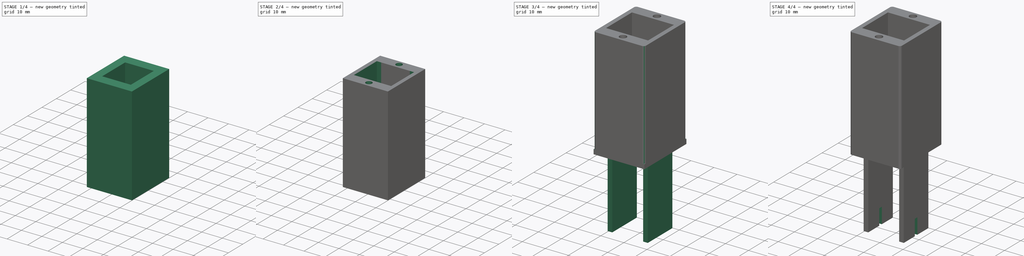
[diagram: build sequence overview — one tinted view per stage of 4, left to right]
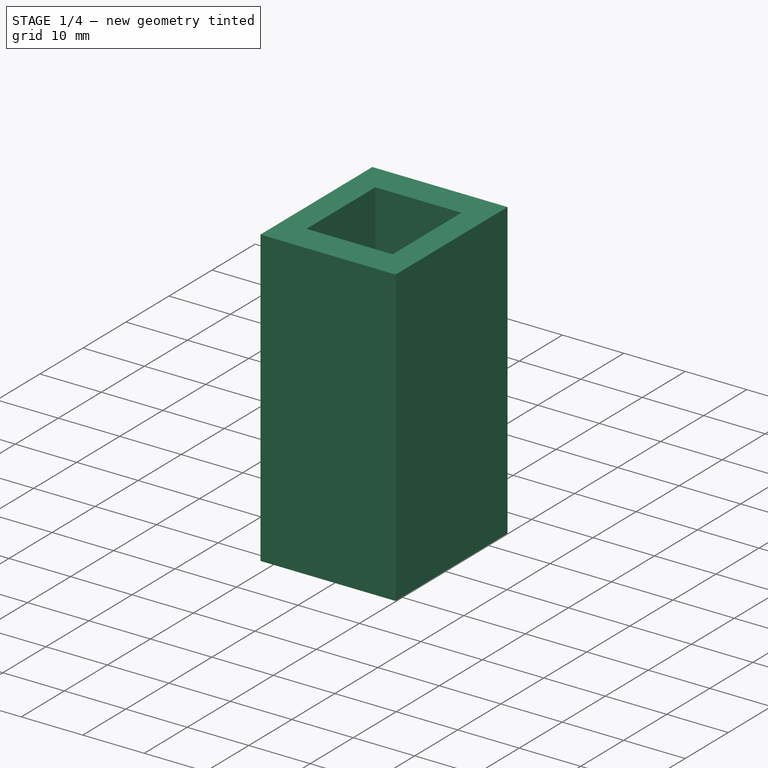
[diagram: stage 1 of 4 — iso view after this stage's code; geometry added in this stage tinted green]
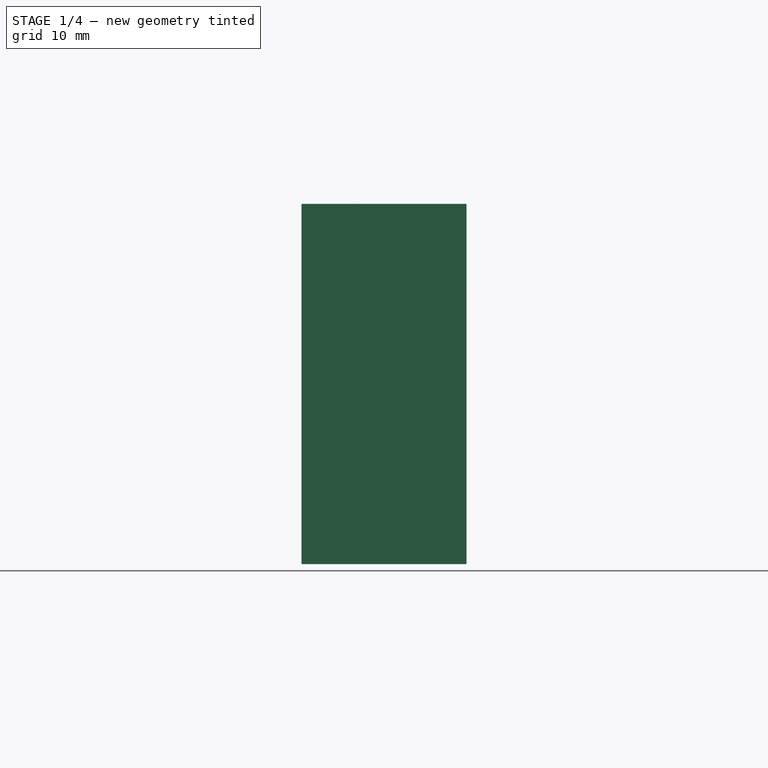
[diagram: stage 1 of 4 — front view after this stage's code; geometry added in this stage tinted green]
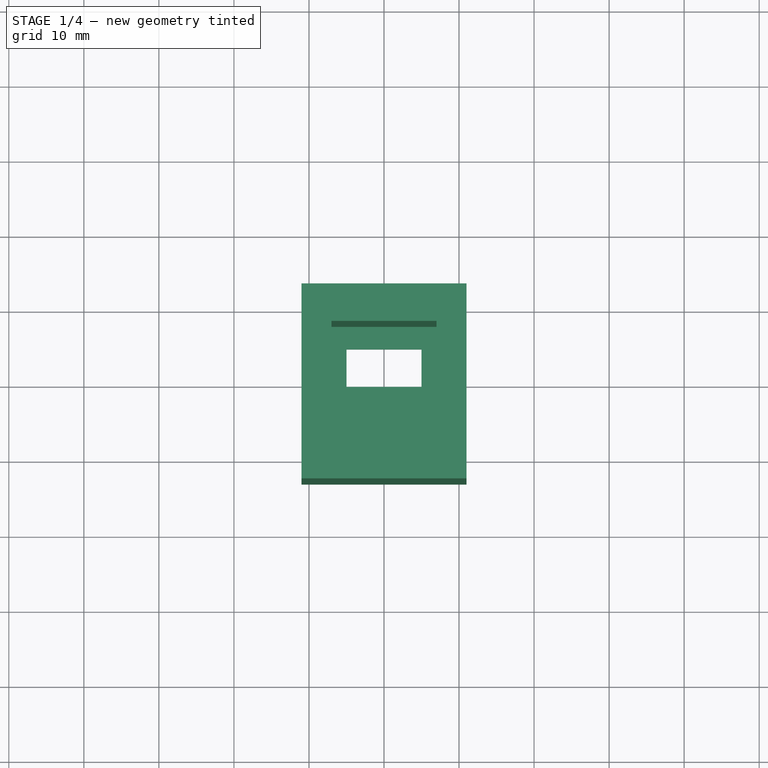
[diagram: stage 1 of 4 — top view after this stage's code; geometry added in this stage tinted green]
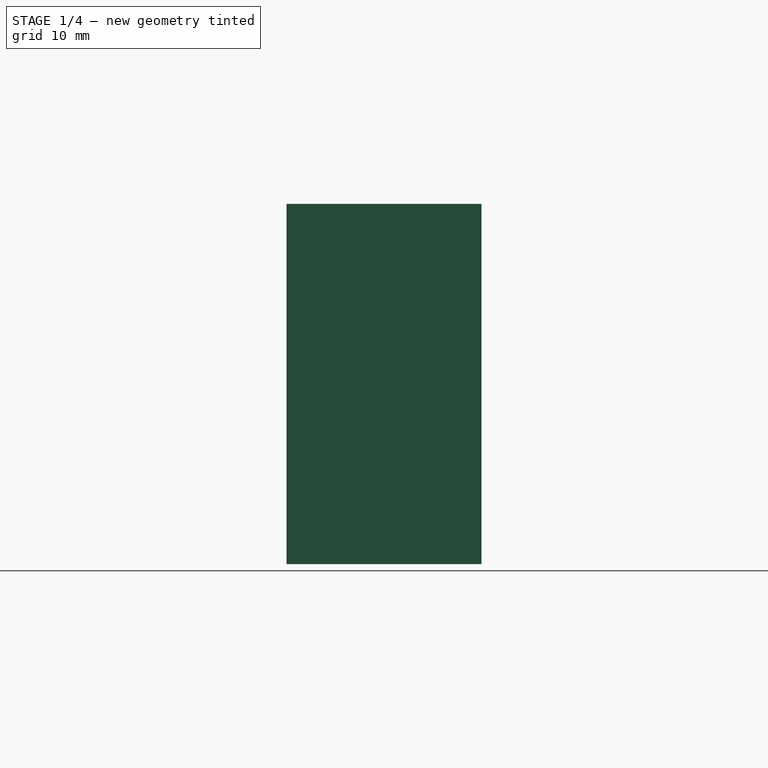
[diagram: stage 1 of 4 — right view after this stage's code; geometry added in this stage tinted green]
FCSTD DOCUMENT  (FreeCAD 0.21R33771 (Git))
Label: BNC-Xiao
License: All rights reserved
LicenseURL: http://en.wikipedia.org/wiki/All_rights_reserved
objects: Sketcher::SketchObject×11, PartDesign::Pocket×7, PartDesign::Pad×4, PartDesign::Fillet×2, PartDesign::Body×2, Part::Feature×1, App::Part×1
note: 40 computed .brp shape members not serialized (recipe doc carries the construction recipe); baked Part::Feature solids carry a one-line shape summary decoded from their .brp

FEATURE [Sketcher::SketchObject] Sketch
  FullyConstrained = true
  MapMode = 5
  Support = -> [XY_Plane]
  sketch-geometry (5):
    g0: LineSegment StartX=-11 StartY=13 StartZ=0 EndX=-11 EndY=-13 EndZ=0
    g1: LineSegment StartX=-11 StartY=-13 StartZ=0 EndX=11 EndY=-13 EndZ=0
    g2: LineSegment StartX=11 StartY=-13 StartZ=0 EndX=11 EndY=13 EndZ=0
    g3: LineSegment StartX=11 StartY=13 StartZ=0 EndX=-11 EndY=13 EndZ=0
    g4: GeomPoint X=0 Y=0 Z=0
  constraints (12):
    c: Coincident(g0,g1)
    c: Coincident(g1,g2)
    c: Coincident(g2,g3)
    c: Coincident(g3,g0)
    c: Horizontal(g1)
    c: Horizontal(g3)
    c: Vertical(g0)
    c: Vertical(g2)
    c: Symmetric(g1,g0,g4)
    c: Coincident(g4,g-1)
    c: DistanceY(g0,g0) = 26
    c: DistanceX(g3,g3) = 22
FEATURE [PartDesign::Pad] Pad
  Direction = (0,0,1)
  Length = 2
  Length2 = 10
  Profile = -> Sketch
  ReferenceAxis = -> Sketch [N_Axis]
  Type = 0
FEATURE [Sketcher::SketchObject] Sketch007
  FullyConstrained = true
  MapMode = 5
  Placement = pos=(0,0,2) rot=(0,0,1;0rad)
  Support = -> [Pad]
  sketch-geometry (4):
    g0: LineSegment StartX=-5 StartY=5 StartZ=0 EndX=-5 EndY=0 EndZ=0
    g1: LineSegment StartX=-5 StartY=0 StartZ=0 EndX=5 EndY=0 EndZ=0
    g2: LineSegment StartX=5 StartY=0 StartZ=0 EndX=5 EndY=5 EndZ=0
    g3: LineSegment StartX=5 StartY=5 StartZ=0 EndX=-5 EndY=5 EndZ=0
  constraints (12):
    c: Coincident(g0,g1)
    c: Coincident(g1,g2)
    c: Coincident(g2,g3)
    c: Coincident(g3,g0)
    c: Horizontal(g1)
    c: Horizontal(g3)
    c: Vertical(g0)
    c: Vertical(g2)
    c: DistanceY(g0,g0) = 5
    c: DistanceX(g3,g3) = 10
    c: DistanceX(g-1,g1) = 5
    c: DistanceY(g-1,g2) = 5
FEATURE [PartDesign::Pocket] Pocket  label="Pocket_USB"
  BaseFeature = -> Pad
  Direction = (0,0,-1)
  Length = 5
  Length2 = 5
  Profile = -> Sketch007
  ReferenceAxis = -> Sketch007 [N_Axis]
  Type = 1
FEATURE [Sketcher::SketchObject] Sketch008
  FullyConstrained = true
  MapMode = 5
  Placement = pos=(0,0,2) rot=(0,0,1;0rad)
  Support = -> [Pocket]
  sketch-geometry (10):
    g0: LineSegment StartX=-11 StartY=13 StartZ=0 EndX=-11 EndY=-13 EndZ=0
    g1: LineSegment StartX=-11 StartY=-13 StartZ=0 EndX=11 EndY=-13 EndZ=0
    g2: LineSegment StartX=11 StartY=-13 StartZ=0 EndX=11 EndY=13 EndZ=0
    g3: LineSegment StartX=11 StartY=13 StartZ=0 EndX=-11 EndY=13 EndZ=0
    g4: GeomPoint X=0 Y=0 Z=0
    g5: LineSegment StartX=-7 StartY=8 StartZ=0 EndX=-7 EndY=-8 EndZ=0
    g6: LineSegment StartX=-7 StartY=-8 StartZ=0 EndX=7 EndY=-8 EndZ=0
    g7: LineSegment StartX=7 StartY=-8 StartZ=0 EndX=7 EndY=8 EndZ=0
    g8: LineSegment StartX=7 StartY=8 StartZ=0 EndX=-7 EndY=8 EndZ=0
    g9: GeomPoint X=0 Y=0 Z=0
  constraints (24):
    c: Coincident(g0,g1)
    c: Coincident(g1,g2)
    c: Coincident(g2,g3)
    c: Coincident(g3,g0)
    c: Horizontal(g1)
    c: Horizontal(g3)
    c: Vertical(g0)
    c: Vertical(g2)
    c: Symmetric(g1,g0,g4)
    c: Coincident(g4,g-1)
    c: DistanceX(g3,g3) = 22
    c: DistanceY(g2,g2) = 26
    c: Coincident(g5,g6)
    c: Coincident(g6,g7)
    c: Coincident(g7,g8)
    c: Coincident(g8,g5)
    c: Horizontal(g6)
    c: Horizontal(g8)
    c: Vertical(g5)
    c: Vertical(g7)
    c: Symmetric(g6,g5,g9)
    c: Coincident(g9,g4)
    c: DistanceX(g8,g8) = 14
    c: DistanceY(g5,g5) = 16
FEATURE [PartDesign::Pad] Pad005
  BaseFeature = -> Pocket
  Direction = (0,0,1)
  Length = 46
  Length2 = 10
  Profile = -> Sketch008
  ReferenceAxis = -> Sketch008 [N_Axis]
  Type = 0
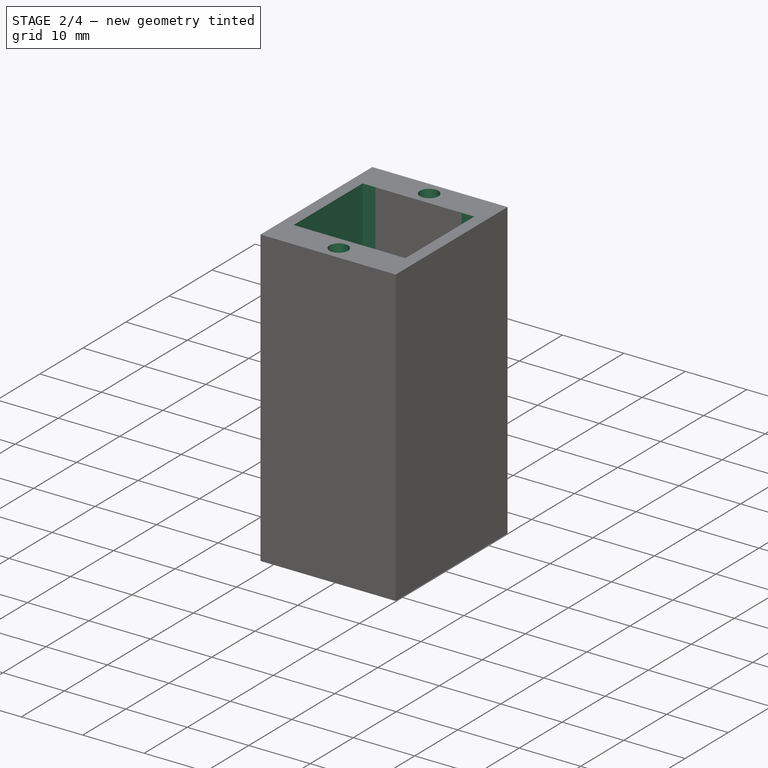
[diagram: stage 2 of 4 — iso view after this stage's code; geometry added in this stage tinted green]
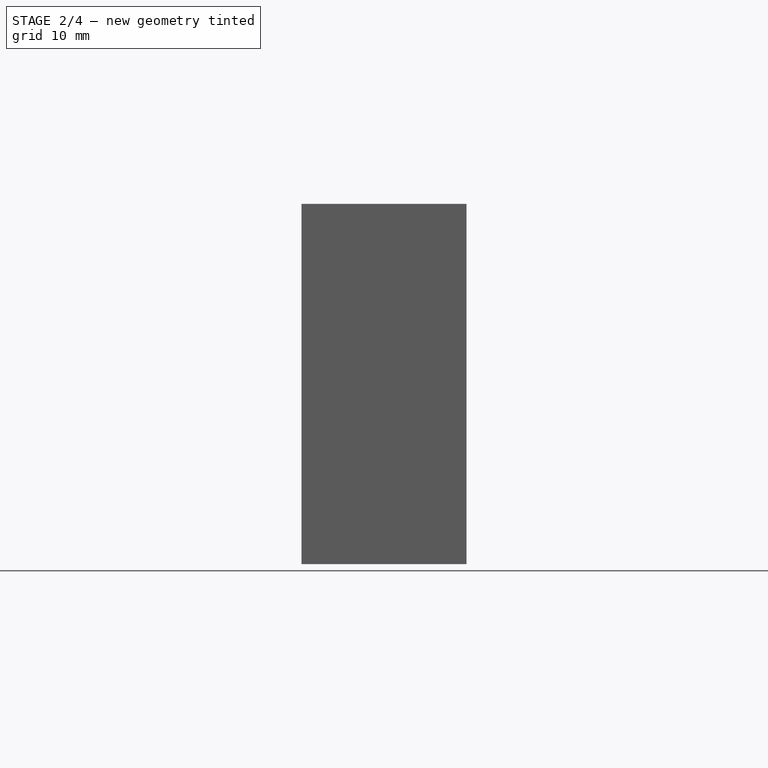
[diagram: stage 2 of 4 — front view after this stage's code; geometry added in this stage tinted green]
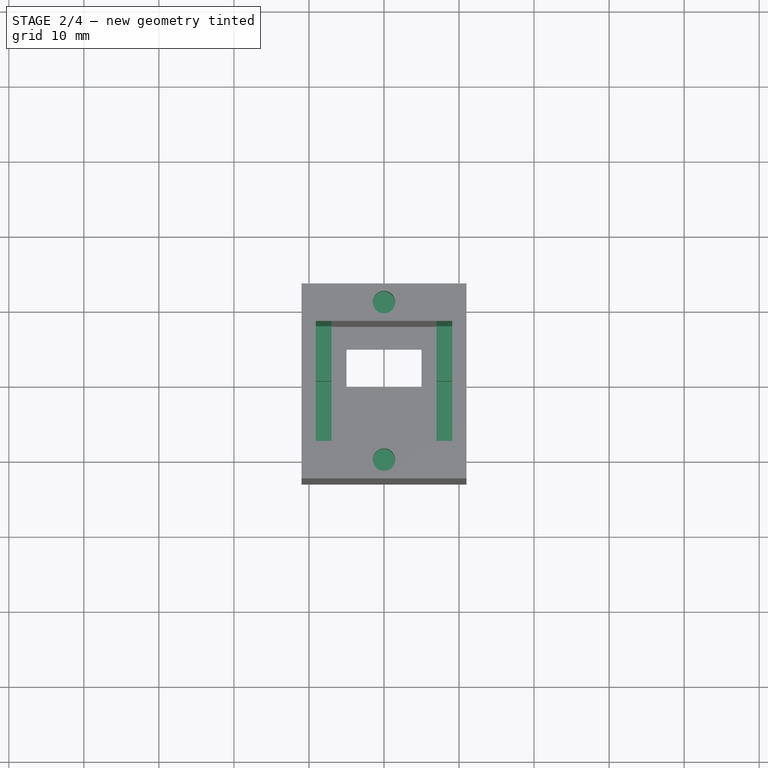
[diagram: stage 2 of 4 — top view after this stage's code; geometry added in this stage tinted green]
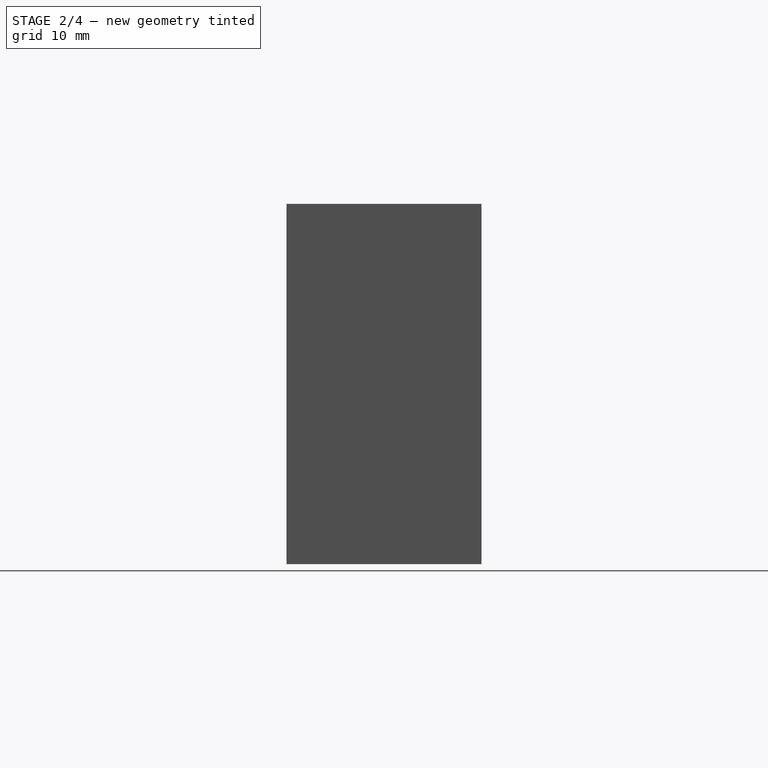
[diagram: stage 2 of 4 — right view after this stage's code; geometry added in this stage tinted green]
FEATURE [Sketcher::SketchObject] Sketch009
  FullyConstrained = true
  MapMode = 5
  Placement = pos=(0,0,48) rot=(0,0,1;0rad)
  Support = -> [Pad005]
  sketch-geometry (5):
    g0: LineSegment StartX=-9.1 StartY=8 StartZ=0 EndX=-9.1 EndY=-8 EndZ=0
    g1: LineSegment StartX=-9.1 StartY=-8 StartZ=0 EndX=9.1 EndY=-8 EndZ=0
    g2: LineSegment StartX=9.1 StartY=-8 StartZ=0 EndX=9.1 EndY=8 EndZ=0
    g3: LineSegment StartX=9.1 StartY=8 StartZ=0 EndX=-9.1 EndY=8 EndZ=0
    g4: GeomPoint X=0 Y=0 Z=0
  constraints (12):
    c: Coincident(g0,g1)
    c: Coincident(g1,g2)
    c: Coincident(g2,g3)
    c: Coincident(g3,g0)
    c: Horizontal(g1)
    c: Horizontal(g3)
    c: Vertical(g0)
    c: Vertical(g2)
    c: Symmetric(g1,g0,g4)
    c: Coincident(g4,g-1)
    c: DistanceX(g3,g3) = 18.2
    c: DistanceY(g2,g2) = 16
FEATURE [PartDesign::Pocket] Pocket002
  BaseFeature = -> Pad005
  Direction = (0,0,-1)
  Length = 41.5
  Length2 = 5
  Profile = -> Sketch009
  ReferenceAxis = -> Sketch009 [N_Axis]
  Type = 0
FEATURE [Sketcher::SketchObject] Sketch010
  FullyConstrained = true
  MapMode = 5
  Placement = pos=(0,0,6.5) rot=(0,0,1;0rad)
  Support = -> [Pocket002]
  sketch-geometry (5):
    g0: LineSegment StartX=-9.1 StartY=0.7 StartZ=0 EndX=-9.1 EndY=-0.7 EndZ=0
    g1: LineSegment StartX=-9.1 StartY=-0.7 StartZ=0 EndX=9.1 EndY=-0.7 EndZ=0
    g2: LineSegment StartX=9.1 StartY=-0.7 StartZ=0 EndX=9.1 EndY=0.7 EndZ=0
    g3: LineSegment StartX=9.1 StartY=0.7 StartZ=0 EndX=-9.1 EndY=0.7 EndZ=0
    g4: GeomPoint X=0 Y=0 Z=0
  constraints (12):
    c: Coincident(g0,g1)
    c: Coincident(g1,g2)
    c: Coincident(g2,g3)
    c: Coincident(g3,g0)
    c: Horizontal(g1)
    c: Horizontal(g3)
    c: Vertical(g0)
    c: Vertical(g2)
    c: Symmetric(g1,g0,g4)
    c: Coincident(g4,g-1)
    c: DistanceX(g3,g3) = 18.2
    c: DistanceY(g0,g0) = 1.4
FEATURE [PartDesign::Pocket] Pocket003
  BaseFeature = -> Pocket002
  Direction = (0,0,-1)
  Length = 4.5
  Length2 = 5
  Profile = -> Sketch010
  ReferenceAxis = -> Sketch010 [N_Axis]
  Type = 0
FEATURE [Sketcher::SketchObject] Sketch013
  FullyConstrained = true
  MapMode = 5
  Placement = pos=(0,0,48) rot=(0,0,1;0rad)
  Support = -> [Pocket003]
  sketch-geometry (2):
    g0: Circle CenterX=0 CenterY=10.5 CenterZ=0 NormalX=0 NormalY=0 NormalZ=1 AngleXU=0 Radius=1.5
    g1: Circle CenterX=0 CenterY=-10.5 CenterZ=0 NormalX=0 NormalY=0 NormalZ=1 AngleXU=0 Radius=1.5
  constraints (5):
    c: PointOnObject(g0,g-2)
    c: Diameter(g0) = 3
    c: DistanceY(g-1,g0) = 10.5
    c: Diameter(g1) = 3
    c: Symmetric(g0,g1,g-1)
FEATURE [PartDesign::Pocket] Pocket005
  BaseFeature = -> Pocket003
  Direction = (0,0,-1)
  Length = 5
  Length2 = 5
  Profile = -> Sketch013
  ReferenceAxis = -> Sketch013 [N_Axis]
  Type = 0
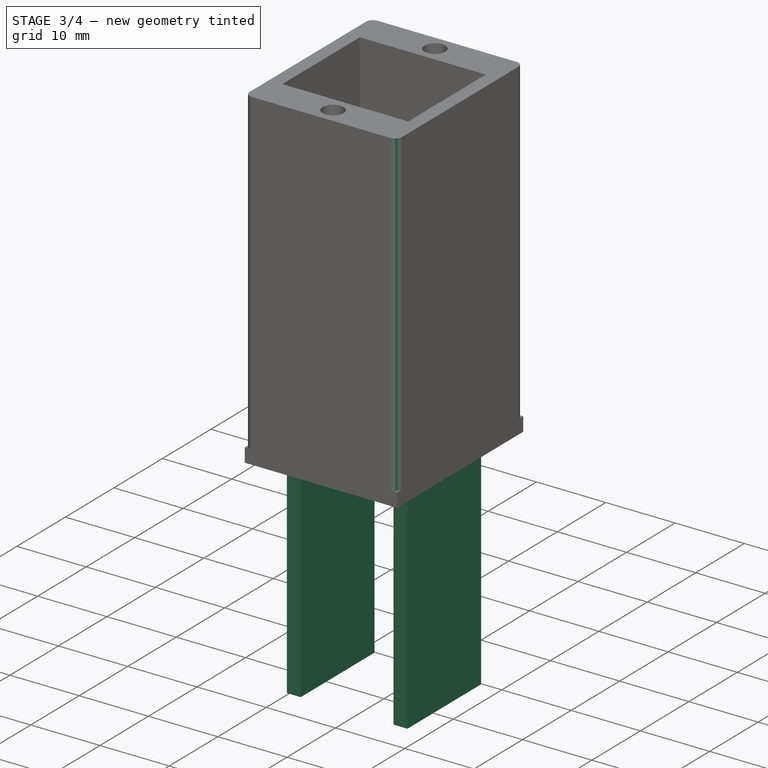
[diagram: stage 3 of 4 — iso view after this stage's code; geometry added in this stage tinted green]
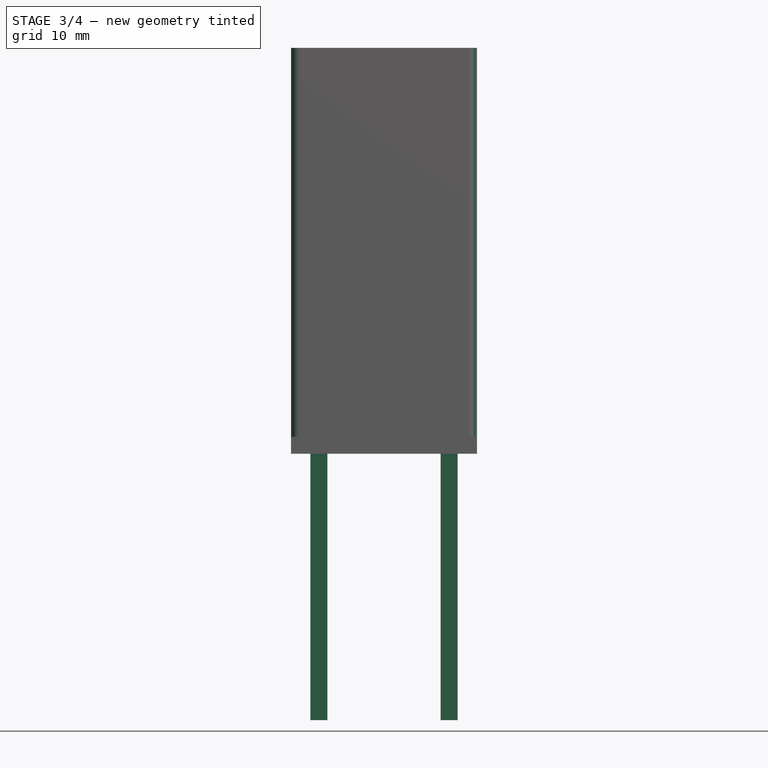
[diagram: stage 3 of 4 — front view after this stage's code; geometry added in this stage tinted green]
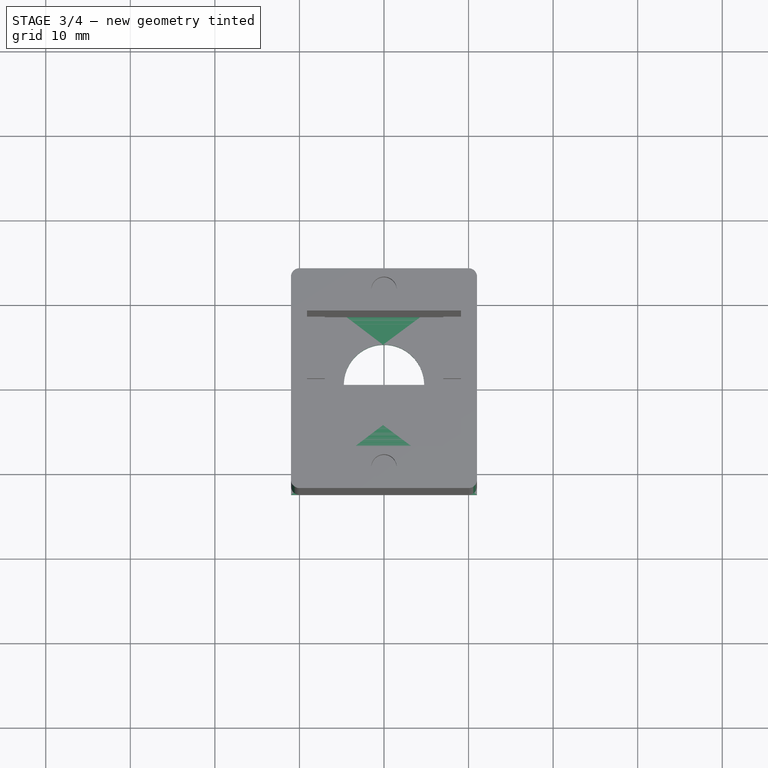
[diagram: stage 3 of 4 — top view after this stage's code; geometry added in this stage tinted green]
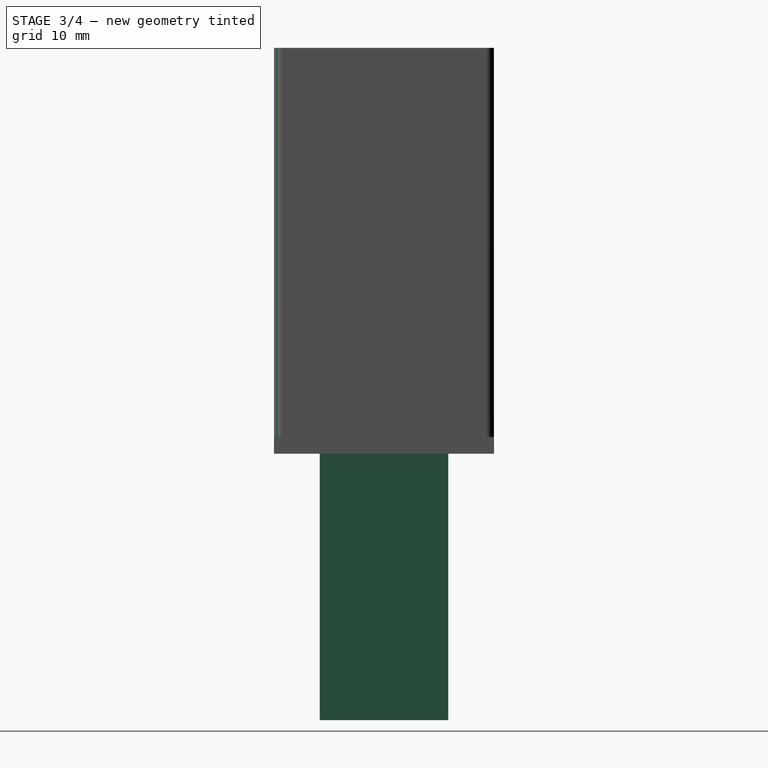
[diagram: stage 3 of 4 — right view after this stage's code; geometry added in this stage tinted green]
FEATURE [Sketcher::SketchObject] Sketch004
  FullyConstrained = true
  MapMode = 5
  Support = -> [XY_Plane001]
  sketch-geometry (5):
    g0: LineSegment StartX=-11 StartY=13 StartZ=0 EndX=-11 EndY=-13 EndZ=0
    g1: LineSegment StartX=-11 StartY=-13 StartZ=0 EndX=11 EndY=-13 EndZ=0
    g2: LineSegment StartX=11 StartY=-13 StartZ=0 EndX=11 EndY=13 EndZ=0
    g3: LineSegment StartX=11 StartY=13 StartZ=0 EndX=-11 EndY=13 EndZ=0
    g4: GeomPoint X=0 Y=0 Z=0
  constraints (12):
    c: Coincident(g0,g1)
    c: Coincident(g1,g2)
    c: Coincident(g2,g3)
    c: Coincident(g3,g0)
    c: Horizontal(g1)
    c: Horizontal(g3)
    c: Vertical(g0)
    c: Vertical(g2)
    c: Symmetric(g1,g0,g4)
    c: Coincident(g4,g-1)
    c: DistanceY(g0,g0) = 26
    c: DistanceX(g3,g3) = 22
FEATURE [PartDesign::Pad] Pad003
  Direction = (0,0,1)
  Length = 2
  Length2 = 10
  Profile = -> Sketch004
  ReferenceAxis = -> Sketch004 [N_Axis]
  Type = 0
FEATURE [Sketcher::SketchObject] Sketch011
  FullyConstrained = true
  MapMode = 5
  Placement = pos=(0,0,2) rot=(0,0,1;0rad)
  Support = -> [Pad003]
  sketch-geometry (1):
    g0: Circle CenterX=0 CenterY=0 CenterZ=0 NormalX=0 NormalY=0 NormalZ=1 AngleXU=0 Radius=4.75
  constraints (2):
    c: Coincident(g0,g-1)
    c: Diameter(g0) = 9.5
FEATURE [PartDesign::Pocket] Pocket004  label="Pocket_BNC"
  BaseFeature = -> Pad003
  Direction = (0,0,-1)
  Length = 5
  Length2 = 5
  Profile = -> Sketch011
  ReferenceAxis = -> Sketch011 [N_Axis]
  Type = 1
FEATURE [Sketcher::SketchObject] Sketch012
  FullyConstrained = true
  MapMode = 5
  Placement = pos=(0,0,0) rot=(1,0,0;3.14159rad)
  Support = -> [Pocket004]
  sketch-geometry (10):
    g0: LineSegment StartX=-8.7 StartY=7.6 StartZ=0 EndX=-8.7 EndY=-7.6 EndZ=0
    g1: LineSegment StartX=-8.7 StartY=-7.6 StartZ=0 EndX=-6.7 EndY=-7.6 EndZ=0
    g2: LineSegment StartX=-6.7 StartY=-7.6 StartZ=0 EndX=-6.7 EndY=7.6 EndZ=0
    g3: LineSegment StartX=-6.7 StartY=7.6 StartZ=0 EndX=-8.7 EndY=7.6 EndZ=0
    g4: GeomPoint X=-7.7 Y=0 Z=0
    g5: LineSegment StartX=8.7 StartY=7.6 StartZ=0 EndX=8.7 EndY=-7.6 EndZ=0
    g6: LineSegment StartX=8.7 StartY=-7.6 StartZ=0 EndX=6.7 EndY=-7.6 EndZ=0
    g7: LineSegment StartX=6.7 StartY=-7.6 StartZ=0 EndX=6.7 EndY=7.6 EndZ=0
    g8: LineSegment StartX=6.7 StartY=7.6 StartZ=0 EndX=8.7 EndY=7.6 EndZ=0
    g9: GeomPoint X=7.7 Y=0 Z=0
  constraints (25):
    c: Coincident(g0,g1)
    c: Coincident(g1,g2)
    c: Coincident(g2,g3)
    c: Coincident(g3,g0)
    c: Horizontal(g1)
    c: Horizontal(g3)
    c: Vertical(g0)
    c: Vertical(g2)
    c: Symmetric(g1,g0,g4)
    c: PointOnObject(g4,g-1)
    c: DistanceX(g3,g3) = 2
    c: DistanceX(g4,g-1) = 7.7
    c: DistanceY(g0,g0) = 15.2
    c: Coincident(g5,g6)
    c: Coincident(g6,g7)
    c: Coincident(g7,g8)
    c: Coincident(g8,g5)
    c: Horizontal(g6)
    c: Horizontal(g8)
    c: Vertical(g5)
    c: Vertical(g7)
    c: Symmetric(g6,g5,g9)
    c: Equal(g0,g5)
    c: Equal(g3,g8)
    c: Symmetric(g4,g9,g-2)
FEATURE [PartDesign::Pad] Pad006
  BaseFeature = -> Pocket004
  Direction = (0,0,-1)
  Length = 31.5
  Length2 = 10
  Profile = -> Sketch012
  ReferenceAxis = -> Sketch012 [N_Axis]
  Type = 0
FEATURE [PartDesign::Body] Body001  label="BNC-side"
  Group = -> [Sketch004,Pad003,Sketch011,Pocket004,Sketch012,Pad006,Sketch014,Pocket006,Sketch015,Pocket007,Fillet]
  Origin = -> Origin001
  Placement = pos=(0,0,48) rot=(0,1,0;0rad)
  Tip = -> Fillet
FEATURE [PartDesign::Fillet] Fillet001
  Base = -> Pocket005 [Edge16,Edge17,Edge20,Edge22,Edge8,Edge5,Edge1,Edge2]
  BaseFeature = -> Pocket005
  Radius = 1
  SupportTransform = false
  UseAllEdges = false
FEATURE [PartDesign::Body] Body  label="MiconBoard-side"
  Group = -> [Sketch,Pad,Sketch007,Pocket,Sketch008,Pad005,Sketch009,Pocket002,Sketch010,Pocket003,Sketch013,Pocket005,Fillet001]
  Origin = -> Origin
  Tip = -> Fillet001
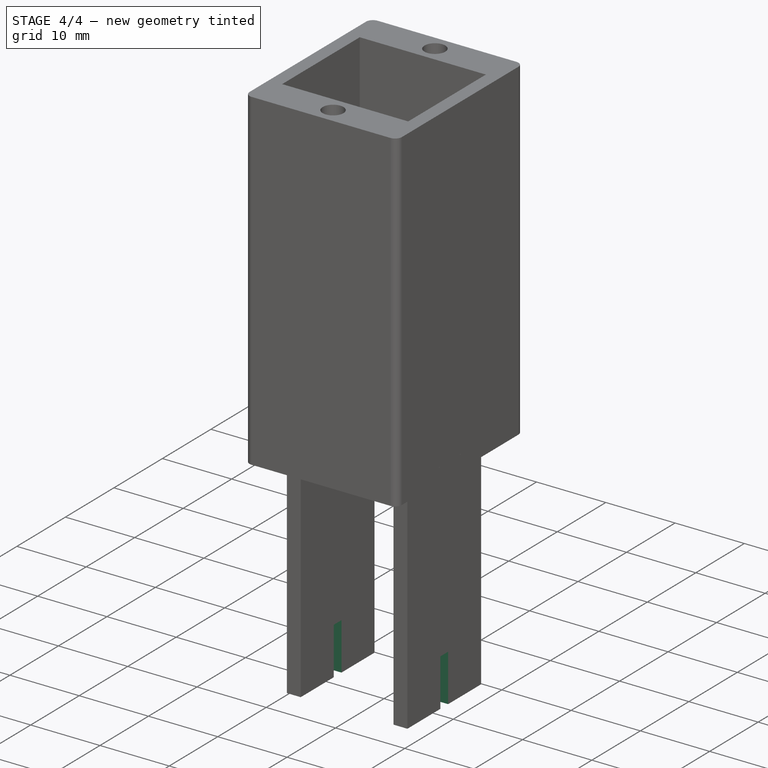
[diagram: stage 4 of 4 — iso view after this stage's code; geometry added in this stage tinted green]
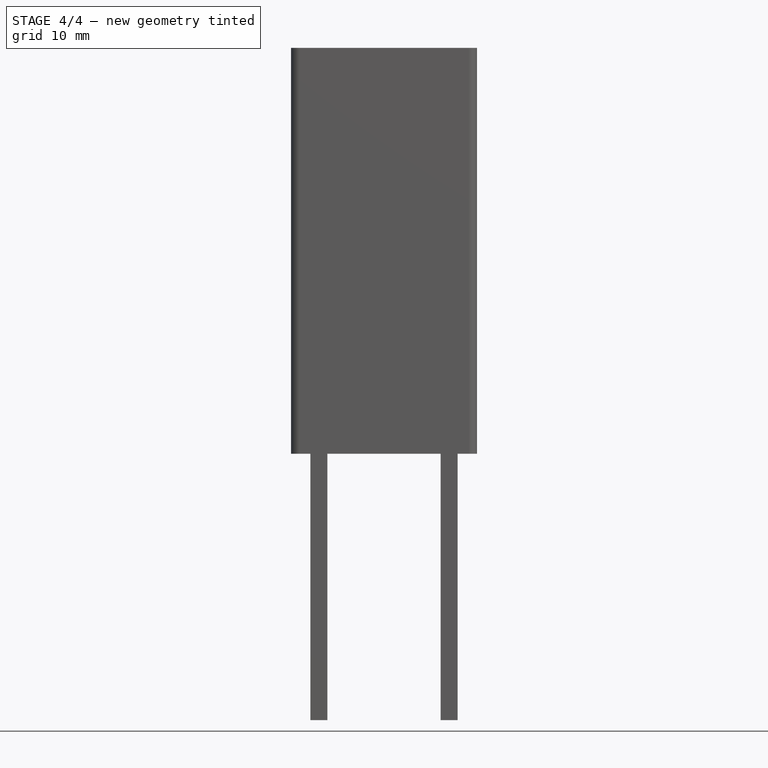
[diagram: stage 4 of 4 — front view after this stage's code; geometry added in this stage tinted green]
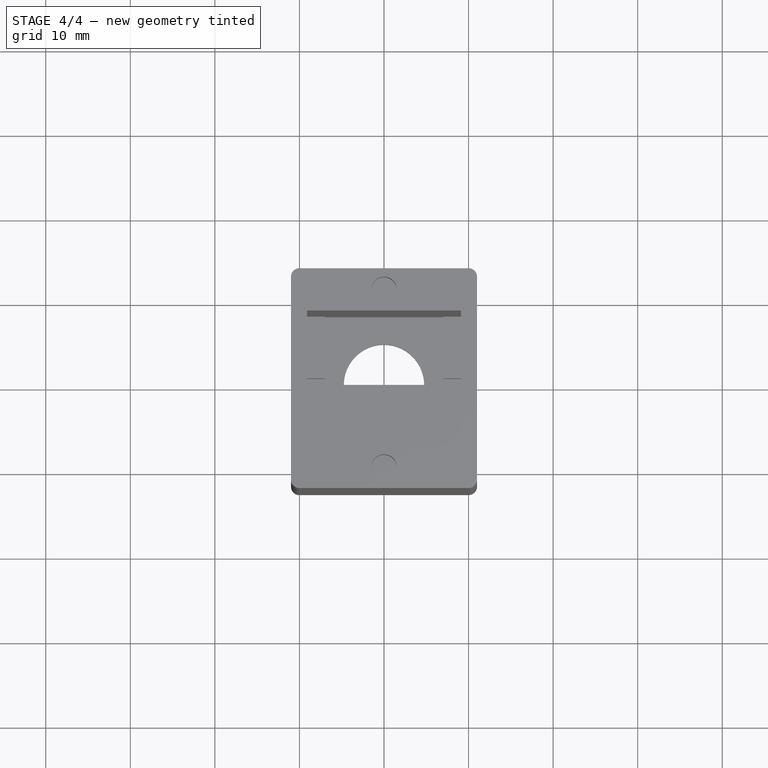
[diagram: stage 4 of 4 — top view after this stage's code; geometry added in this stage tinted green]
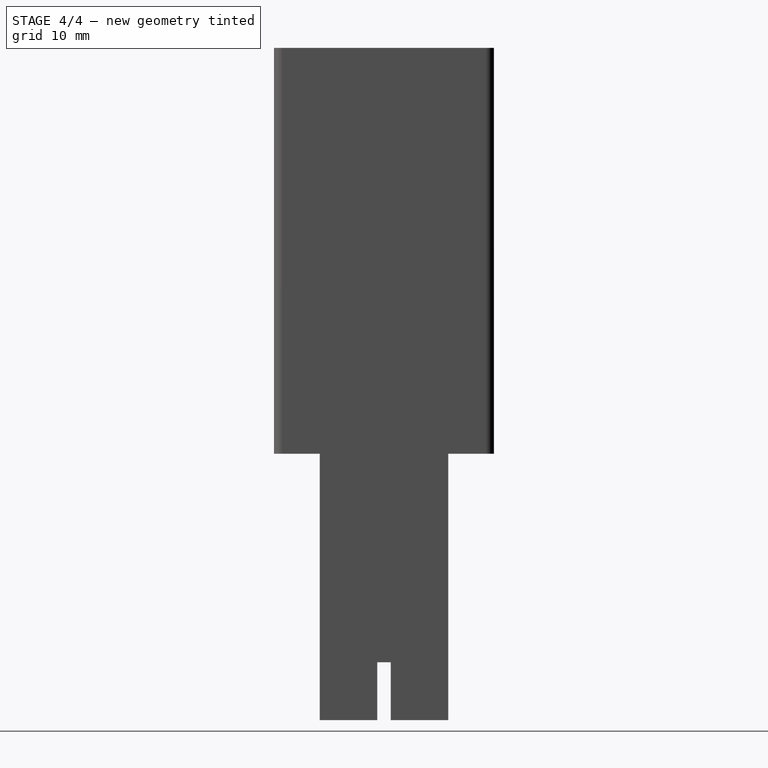
[diagram: stage 4 of 4 — right view after this stage's code; geometry added in this stage tinted green]
FEATURE [Sketcher::SketchObject] Sketch014
  FullyConstrained = true
  MapMode = 5
  Placement = pos=(0,0,2) rot=(0,0,1;0rad)
  Support = -> [Pad006]
  sketch-geometry (2):
    g0: Circle CenterX=0 CenterY=10.5 CenterZ=0 NormalX=0 NormalY=0 NormalZ=1 AngleXU=0 Radius=1.3
    g1: Circle CenterX=0 CenterY=-10.5 CenterZ=0 NormalX=0 NormalY=0 NormalZ=1 AngleXU=0 Radius=1.3
  constraints (5):
    c: PointOnObject(g0,g-2)
    c: Diameter(g0) = 2.6
    c: DistanceY(g-1,g0) = 10.5
    c: Diameter(g1) = 2.6
    c: Symmetric(g0,g1,g-1)
FEATURE [PartDesign::Pocket] Pocket006  label="Pocket_M2"
  BaseFeature = -> Pad006
  Direction = (0,0,-1)
  Length = 5
  Length2 = 5
  Profile = -> Sketch014
  ReferenceAxis = -> Sketch014 [N_Axis]
  Type = 1
FEATURE [Part::Feature] Part__Feature  label="Component1"
  Placement = pos=(0,0,0) rot=(0.57735,0.57735,0.57735;2.0944rad)
  shape: bbox 22.61 x 17.91 x 4.516 mm, 2228 faces, 5 solids (baked)
FEATURE [App::Part] Seeeduino_XIAO_SAMD21_v4  label="Seeeduino XIAO SAMD21 v4"
  Group = -> [Part__Feature]
  Origin = -> Origin002
  Placement = pos=(0,-0.55,12.7) rot=(-0.57735,0.57735,0.57735;2.0944rad)
FEATURE [Sketcher::SketchObject] Sketch015
  FullyConstrained = true
  MapMode = 5
  Placement = pos=(0,0,-31.5) rot=(1,0,0;3.14159rad)
  Support = -> [Pocket006]
  sketch-geometry (5):
    g0: LineSegment StartX=-9.1 StartY=-0.8 StartZ=0 EndX=-9.1 EndY=0.8 EndZ=0
    g1: LineSegment StartX=-9.1 StartY=0.8 StartZ=0 EndX=9.1 EndY=0.8 EndZ=0
    g2: LineSegment StartX=9.1 StartY=0.8 StartZ=0 EndX=9.1 EndY=-0.8 EndZ=0
    g3: LineSegment StartX=9.1 StartY=-0.8 StartZ=0 EndX=-9.1 EndY=-0.8 EndZ=0
    g4: GeomPoint X=0 Y=0 Z=0
  constraints (12):
    c: Coincident(g0,g1)
    c: Coincident(g1,g2)
    c: Coincident(g2,g3)
    c: Coincident(g3,g0)
    c: Horizontal(g1)
    c: Horizontal(g3)
    c: Vertical(g0)
    c: Vertical(g2)
    c: Symmetric(g1,g0,g4)
    c: Coincident(g4,g-1)
    c: DistanceX(g1,g1) = 18.2
    c: DistanceY(g0,g0) = 1.6
FEATURE [PartDesign::Pocket] Pocket007
  BaseFeature = -> Pocket006
  Direction = (0,0,1)
  Length = 6.85
  Length2 = 5
  Profile = -> Sketch015
  ReferenceAxis = -> Sketch015 [N_Axis]
  Type = 0
FEATURE [PartDesign::Fillet] Fillet
  Base = -> Pocket007 [Edge8,Edge5,Edge1,Edge2]
  BaseFeature = -> Pocket007
  Radius = 1
  SupportTransform = false
  UseAllEdges = false
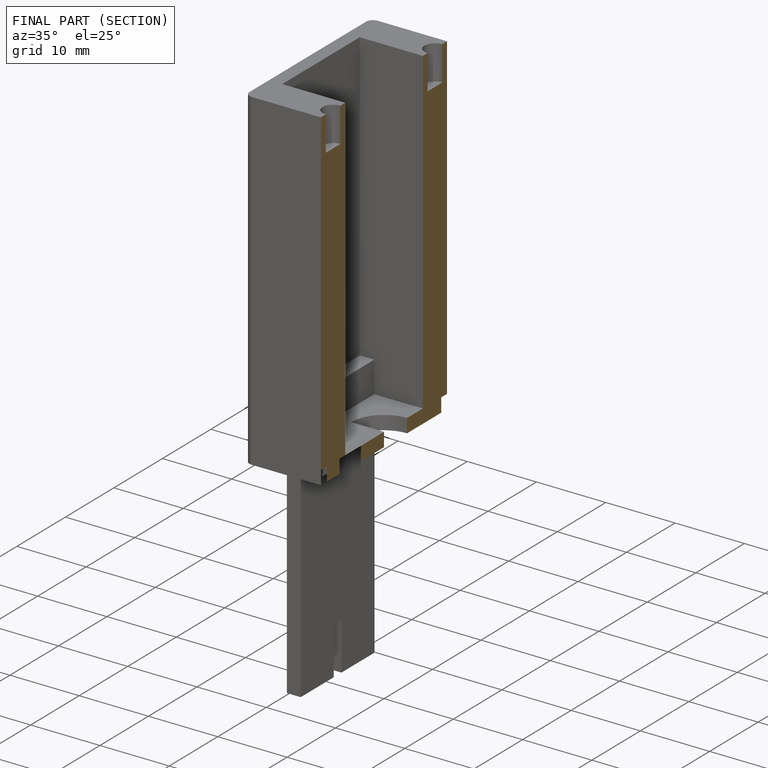
[diagram: finished part — half-section view (interior)]
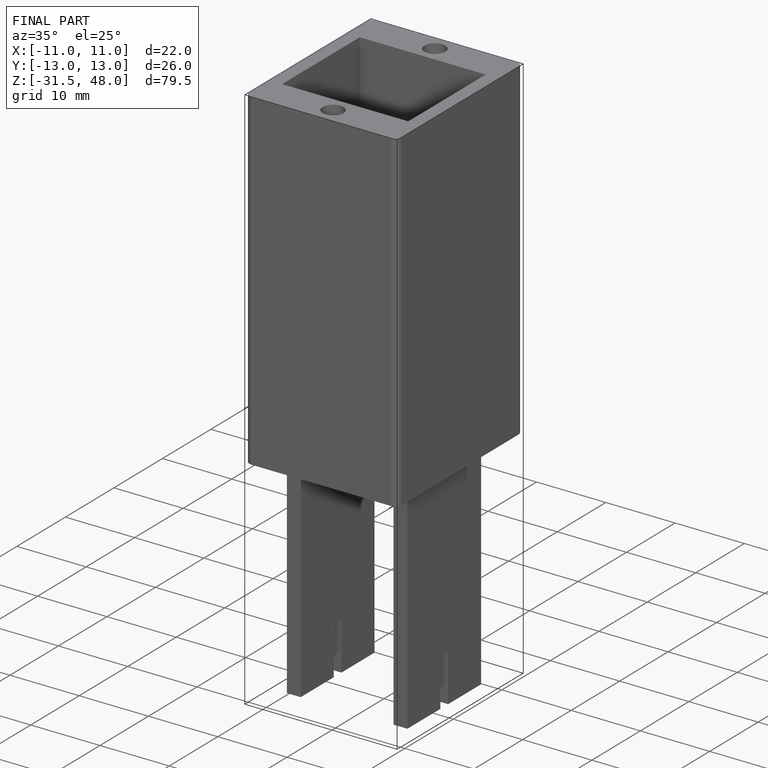
[diagram: finished part — iso view with bounding-box wireframe]
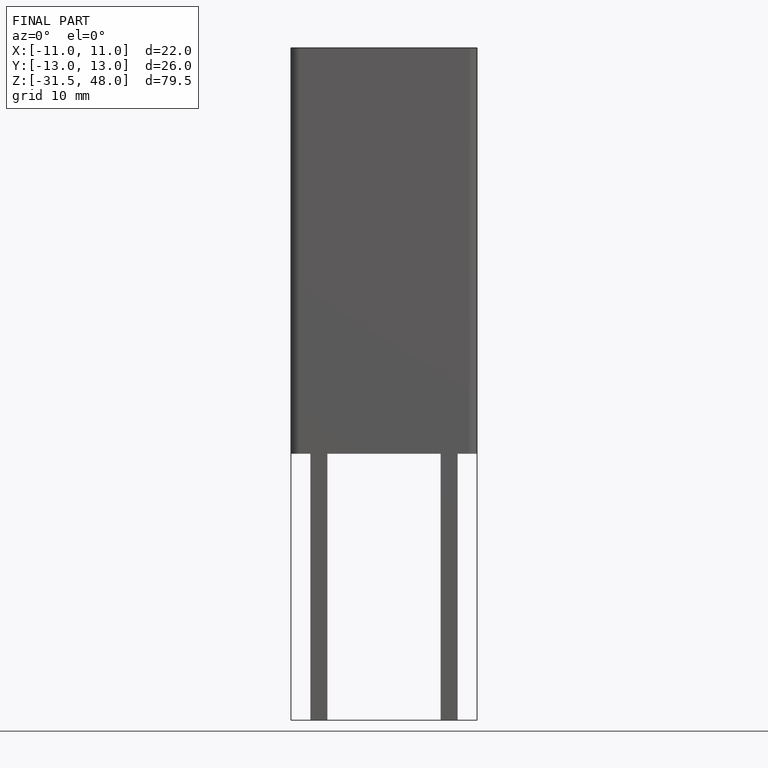
[diagram: finished part — front view with bounding-box wireframe]
